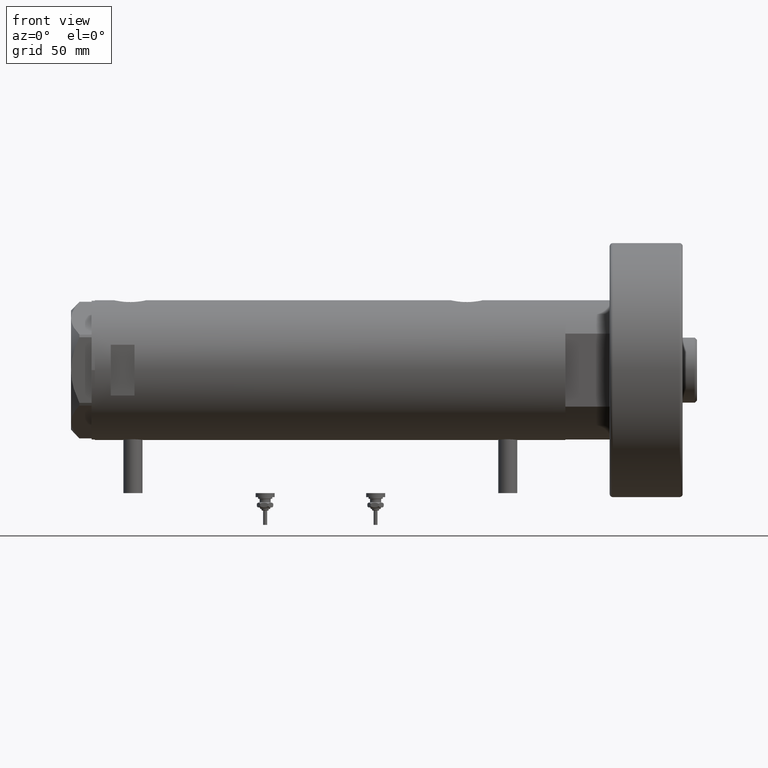
[diagram: clean part render]
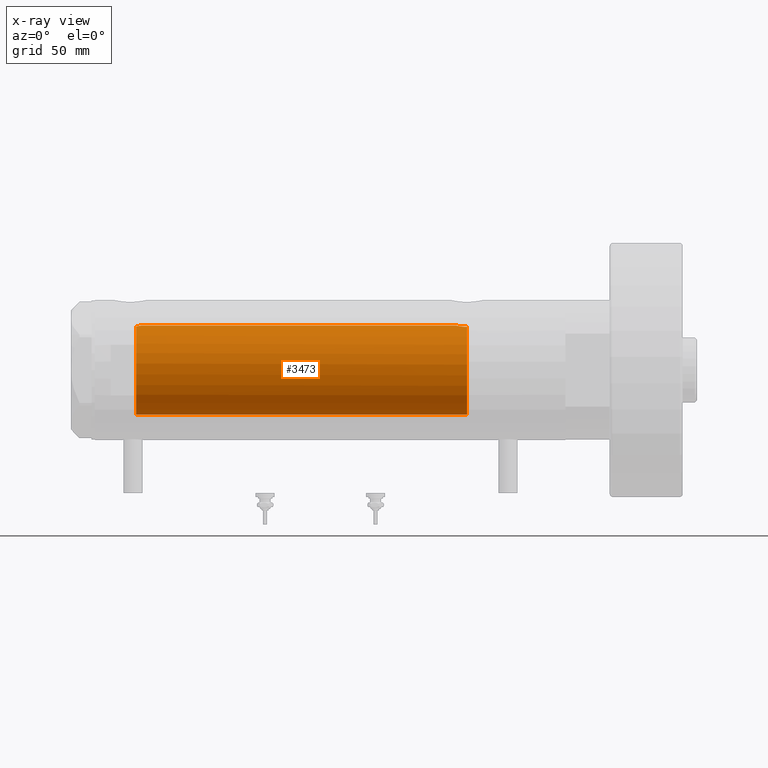
[diagram: x-ray — body ghosted, one internal face saturated and labeled with its STEP entity id]
A machine part, front view, then the same camera in x-ray: the body is ghosted and one INTERNAL B-rep face — a face not visible from any outside direction — is saturated and labeled: STEP entity #3473.
In plain terms, the highlighted cylindrical surface (partial cylindrical patch) has radius 28 mm, axis along (1, 0, -0).
Its self-contained STEP definition (entity closure, byte-faithful):
#9 = CARTESIAN_POINT ( 'NONE',  ( 27.21605408577812213, -6.579240077698945477, -86.20000000000000284 ) ) ;
#43 = CARTESIAN_POINT ( 'NONE',  ( 27.59002303441815229, -4.790793940098335923, 121.3581617652146178 ) ) ;
#73 = CARTESIAN_POINT ( 'NONE',  ( 27.21605408577812213, -6.579240077698945477, -86.20000000000000284 ) ) ;
#130 = CARTESIAN_POINT ( 'NONE',  ( 27.26146154097649443, -6.389008671741151169, -84.46702257288443150 ) ) ;
#174 = LINE ( 'NONE', #2623, #3181 ) ;
#457 = CARTESIAN_POINT ( 'NONE',  ( 27.85549665828546040, -2.850794839423817173, 119.9636768369876307 ) ) ;
#511 = LINE ( 'NONE', #2980, #5699 ) ;
#539 = CARTESIAN_POINT ( 'NONE',  ( 27.34439869716138816, -6.024183900845911488, -83.44423424753804852 ) ) ;
#549 = ORIENTED_EDGE ( 'NONE', *, *, #1601, .T. ) ;
#572 = CARTESIAN_POINT ( 'NONE',  ( 27.36461315879794043, -5.931995402771978121, -83.24427370164931972 ) ) ;
#601 = CARTESIAN_POINT ( 'NONE',  ( 27.99747352180818183, -0.4347571716796946872, -79.53072531013185653 ) ) ;
#670 = VERTEX_POINT ( 'NONE', #6073 ) ;
#703 = DIRECTION ( 'NONE',  ( 0.000000000000000000, 0.000000000000000000, -1.000000000000000000 ) ) ;
#822 = CARTESIAN_POINT ( 'NONE',  ( -28.00000000000000000, 0.000000000000000000, -86.20000000000000284 ) ) ;
#984 = ORIENTED_EDGE ( 'NONE', *, *, #5904, .F. ) ;
#1003 = CARTESIAN_POINT ( 'NONE',  ( 27.21445766202534244, -6.585843933871728062, -85.76551644800677821 ) ) ;
#1103 = CARTESIAN_POINT ( 'NONE',  ( 27.22359243188622102, -6.548490838374235956, -85.32326656774586127 ) ) ;
#1227 = VERTEX_POINT ( 'NONE', #2184 ) ;
#1242 = CIRCLE ( 'NONE', #5162, 28.00000000000000000 ) ;
#1331 = CARTESIAN_POINT ( 'NONE',  ( 0.000000000000000000, 0.000000000000000000, 148.1999999999999886 ) ) ;
#1491 = CARTESIAN_POINT ( 'NONE',  ( 27.97963188585490357, -1.089002775846581894, -79.60708365738665293 ) ) ;
#1547 = CARTESIAN_POINT ( 'NONE',  ( 27.43032278742160912, -5.620674311437150017, -82.67201933177628348 ) ) ;
#1553 = CARTESIAN_POINT ( 'NONE',  ( 27.98432695902670986, -1.071102777755444935, 119.3858034427758952 ) ) ;
#1585 = CARTESIAN_POINT ( 'NONE',  ( 27.40754191563010522, -5.730381220489945804, -82.85863096555547713 ) ) ;
#1601 = EDGE_CURVE ( 'NONE', #2001, #6150, #511, .T. ) ;
#1720 = DIRECTION ( 'NONE',  ( 0.000000000000000000, 0.000000000000000000, 1.000000000000000000 ) ) ;
#1914 = DIRECTION ( 'NONE',  ( -0.000000000000000000, -0.000000000000000000, -1.000000000000000000 ) ) ;
#2001 = VERTEX_POINT ( 'NONE', #6254 ) ;
#2096 = CARTESIAN_POINT ( 'NONE',  ( 27.77950496257091828, -3.511644525604262768, -80.53121142391833587 ) ) ;
#2184 = CARTESIAN_POINT ( 'NONE',  ( -28.00000000000000000, 0.000000000000000000, 122.2000000000000028 ) ) ;
#2189 = B_SPLINE_CURVE_WITH_KNOTS ( 'NONE', 3,
 ( #9, #1003, #1103, #130, #3568, #539, #572, #1585, #1547, #3440, #5044, #4551, #4022, #2096, #5432, #2944, #2974, #4457, #3046, #1491, #2477, #601, #2572, #4490 ),
 .UNSPECIFIED., .F., .F.,
 ( 4, 2, 2, 2, 2, 2, 2, 2, 2, 2, 2, 4 ),
 ( 0.01022506235776658549, 0.01152748911132699984, 0.01282991586488741419, 0.01348112924166763871, 0.01413234261844786496, 0.01543476937200835390, 0.01673719612556884284, 0.01738840950234907604, 0.01803962287912930923, 0.01934204963268975827, 0.01999326300946997759, 0.02064447638625020037 ),
 .UNSPECIFIED. ) ;
#2218 = AXIS2_PLACEMENT_3D ( 'NONE', #4745, #703, #4717 ) ;
#2239 = DIRECTION ( 'NONE',  ( -0.000000000000000000, -0.000000000000000000, -1.000000000000000000 ) ) ;
#2296 = CARTESIAN_POINT ( 'NONE',  ( 28.00000000000000000, 8.058211040172173087E-16, -79.52000000000001023 ) ) ;
#2334 = EDGE_CURVE ( 'NONE', #6213, #6150, #2189, .T. ) ;
#2425 = CYLINDRICAL_SURFACE ( 'NONE', #3643, 28.00000000000000000 ) ;
#2429 = CARTESIAN_POINT ( 'NONE',  ( 28.00000000000000000, 0.000000000000000000, 119.3200000000000074 ) ) ;
#2477 = CARTESIAN_POINT ( 'NONE',  ( 27.98730817101647261, -0.8707001454186249489, -79.57418472479976401 ) ) ;
#2481 = CARTESIAN_POINT ( 'NONE',  ( 27.87937907436173646, -2.608343522657378788, 119.8531017779724124 ) ) ;
#2572 = CARTESIAN_POINT ( 'NONE',  ( 27.99999999999999645, -0.2171842281426366317, -79.52000000000001023 ) ) ;
#2623 = CARTESIAN_POINT ( 'NONE',  ( -28.00000000000000000, 0.000000000000000000, 148.1999999999999886 ) ) ;
#2735 = VERTEX_POINT ( 'NONE', #822 ) ;
#2944 = CARTESIAN_POINT ( 'NONE',  ( 27.84562549742225812, -2.942523713096129701, -80.21055141078907980 ) ) ;
#2974 = CARTESIAN_POINT ( 'NONE',  ( 27.86589383012873711, -2.744524676092585214, -80.11575755532265930 ) ) ;
#2980 = CARTESIAN_POINT ( 'NONE',  ( 28.00000000000000000, 3.429011037612589276E-15, 148.1999999999999886 ) ) ;
#3046 = CARTESIAN_POINT ( 'NONE',  ( 27.94978721344213923, -1.729827962054677482, -79.73650615356604021 ) ) ;
#3181 = VECTOR ( 'NONE', #2239, 1000.000000000000000 ) ;
#3408 = CARTESIAN_POINT ( 'NONE',  ( 27.80347162683809259, -3.320043793664063436, 120.2127974257676755 ) ) ;
#3440 = CARTESIAN_POINT ( 'NONE',  ( 27.50152613123827550, -5.265397630035332455, -82.13030070339348754 ) ) ;
#3473 = ADVANCED_FACE ( 'NONE', ( #5755 ), #2425, .F. ) ;
#3537 = ORIENTED_EDGE ( 'NONE', *, *, #6230, .F. ) ;
#3568 = CARTESIAN_POINT ( 'NONE',  ( 27.28993558706078559, -6.267945658363885286, -84.05080727201161039 ) ) ;
#3643 = AXIS2_PLACEMENT_3D ( 'NONE', #1331, #6379, #4820 ) ;
#3699 = EDGE_CURVE ( 'NONE', #6213, #2735, #5731, .T. ) ;
#3995 = CARTESIAN_POINT ( 'NONE',  ( 28.00000000000001066, -0.5413643627070141573, 119.3200000000000216 ) ) ;
#3998 = B_SPLINE_CURVE_WITH_KNOTS ( 'NONE', 3,
 ( #2429, #3995, #1553, #5015, #5923, #2481, #457, #3408, #5460, #4460, #5989, #43, #5403, #4398 ),
 .UNSPECIFIED., .F., .F.,
 ( 4, 2, 2, 2, 2, 2, 4 ),
 ( 0.000000000000000000, 0.001600622945448075193, 0.002400934418172112356, 0.003201245890896149519, 0.004001557363620186249, 0.004801868836344223845, 0.006402491781792267814 ),
 .UNSPECIFIED. ) ;
#4022 = CARTESIAN_POINT ( 'NONE',  ( 27.70817449315709169, -4.048115514111795932, -80.89463981057744490 ) ) ;
#4249 = EDGE_LOOP ( 'NONE', ( #3537, #549, #6325, #6304, #984, #4586 ) ) ;
#4398 = CARTESIAN_POINT ( 'NONE',  ( 27.46622653369042766, -5.441176343402221782, 122.2000000000000028 ) ) ;
#4457 = CARTESIAN_POINT ( 'NONE',  ( 27.92072186409136236, -2.143620579020480754, -79.86381653969050376 ) ) ;
#4460 = CARTESIAN_POINT ( 'NONE',  ( 27.71590503262371996, -3.984646725731630035, 120.6568856620623933 ) ) ;
#4490 = CARTESIAN_POINT ( 'NONE',  ( 28.00000000000000000, 8.058211040172173087E-16, -79.52000000000001023 ) ) ;
#4551 = CARTESIAN_POINT ( 'NONE',  ( 27.65700784474207552, -4.380217411398927396, -81.17047453774083010 ) ) ;
#4586 = ORIENTED_EDGE ( 'NONE', *, *, #5947, .T. ) ;
#4661 = CARTESIAN_POINT ( 'NONE',  ( 0.000000000000000000, 0.000000000000000000, 122.2000000000000028 ) ) ;
#4717 = DIRECTION ( 'NONE',  ( -1.000000000000000000, 0.000000000000000000, 0.000000000000000000 ) ) ;
#4745 = CARTESIAN_POINT ( 'NONE',  ( 0.000000000000000000, 0.000000000000000000, -86.20000000000000284 ) ) ;
#4820 = DIRECTION ( 'NONE',  ( -1.000000000000000000, 0.000000000000000000, 0.000000000000000000 ) ) ;
#5015 = CARTESIAN_POINT ( 'NONE',  ( 27.94009016578284132, -1.849003963078876156, 119.5794787532051942 ) ) ;
#5044 = CARTESIAN_POINT ( 'NONE',  ( 27.55308463769900840, -4.992385646466226845, -81.79156508565563399 ) ) ;
#5162 = AXIS2_PLACEMENT_3D ( 'NONE', #4661, #1720, #5633 ) ;
#5403 = CARTESIAN_POINT ( 'NONE',  ( 27.52591771332015824, -5.139864392033239859, 121.7568941995207723 ) ) ;
#5432 = CARTESIAN_POINT ( 'NONE',  ( 27.80238224209238851, -3.326386449198554196, -80.41852099557873146 ) ) ;
#5460 = CARTESIAN_POINT ( 'NONE',  ( 27.77532582369375191, -3.546840381797753849, 120.3513442352566756 ) ) ;
#5633 = DIRECTION ( 'NONE',  ( 1.000000000000000000, 0.000000000000000000, 0.000000000000000000 ) ) ;
#5699 = VECTOR ( 'NONE', #1914, 1000.000000000000000 ) ;
#5731 = CIRCLE ( 'NONE', #2218, 28.00000000000000000 ) ;
#5755 = FACE_OUTER_BOUND ( 'NONE', #4249, .T. ) ;
#5904 = EDGE_CURVE ( 'NONE', #1227, #2735, #174, .T. ) ;
#5923 = CARTESIAN_POINT ( 'NONE',  ( 27.92172852149585793, -2.107204279616217146, 119.6607593279537554 ) ) ;
#5947 = EDGE_CURVE ( 'NONE', #1227, #670, #1242, .T. ) ;
#5989 = CARTESIAN_POINT ( 'NONE',  ( 27.68450581507584829, -4.196237264393386290, 120.8246780296441614 ) ) ;
#6073 = CARTESIAN_POINT ( 'NONE',  ( 27.46622653369042766, -5.441176343402221782, 122.2000000000000028 ) ) ;
#6150 = VERTEX_POINT ( 'NONE', #2296 ) ;
#6213 = VERTEX_POINT ( 'NONE', #73 ) ;
#6230 = EDGE_CURVE ( 'NONE', #2001, #670, #3998, .T. ) ;
#6254 = CARTESIAN_POINT ( 'NONE',  ( 28.00000000000000000, 0.000000000000000000, 119.3200000000000074 ) ) ;
#6304 = ORIENTED_EDGE ( 'NONE', *, *, #3699, .T. ) ;
#6325 = ORIENTED_EDGE ( 'NONE', *, *, #2334, .F. ) ;
#6379 = DIRECTION ( 'NONE',  ( -0.000000000000000000, -0.000000000000000000, -1.000000000000000000 ) ) ;